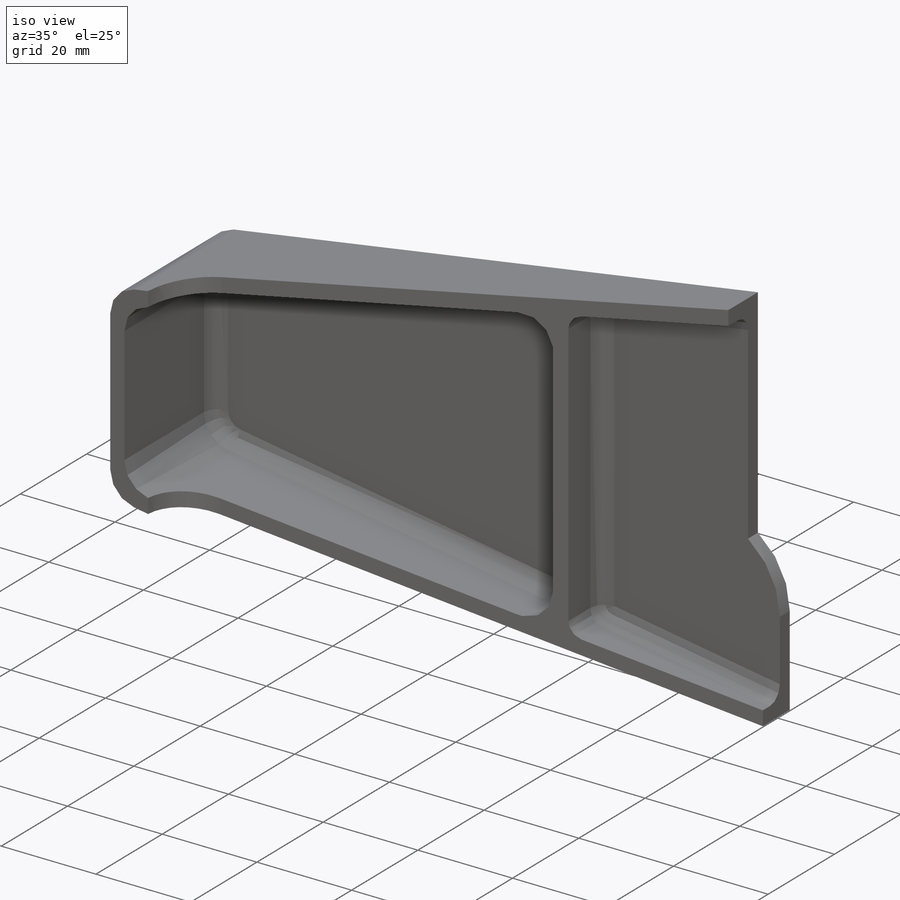
[diagram: iso view]
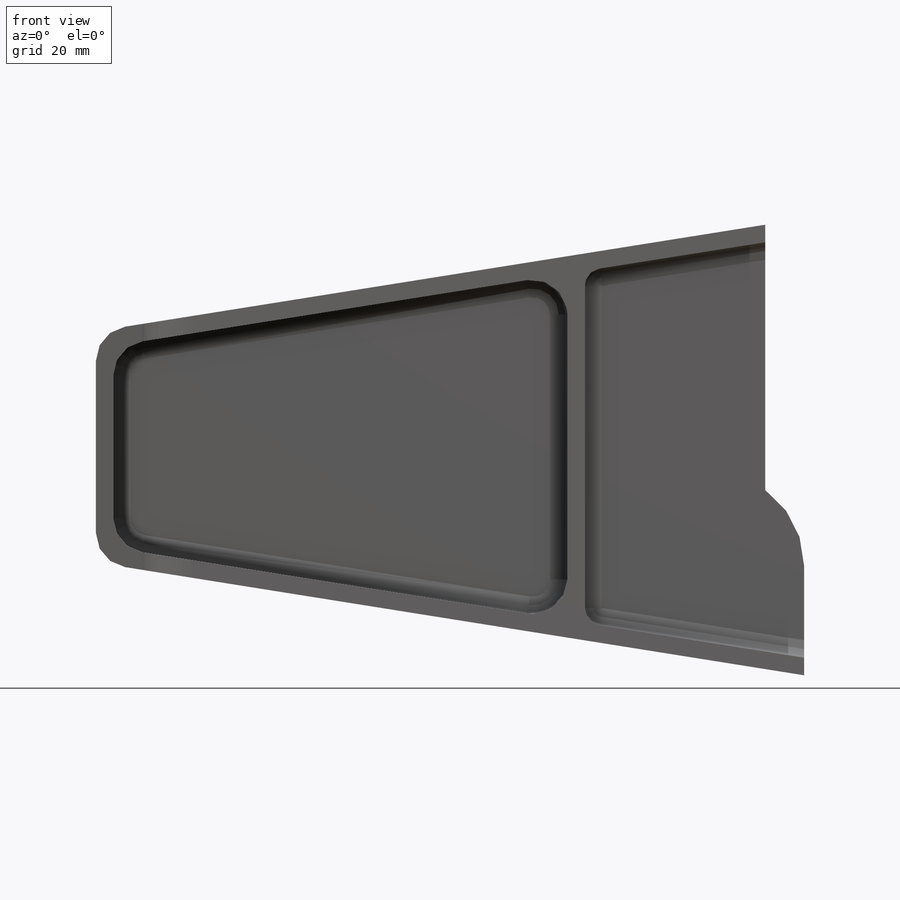
[diagram: front view]
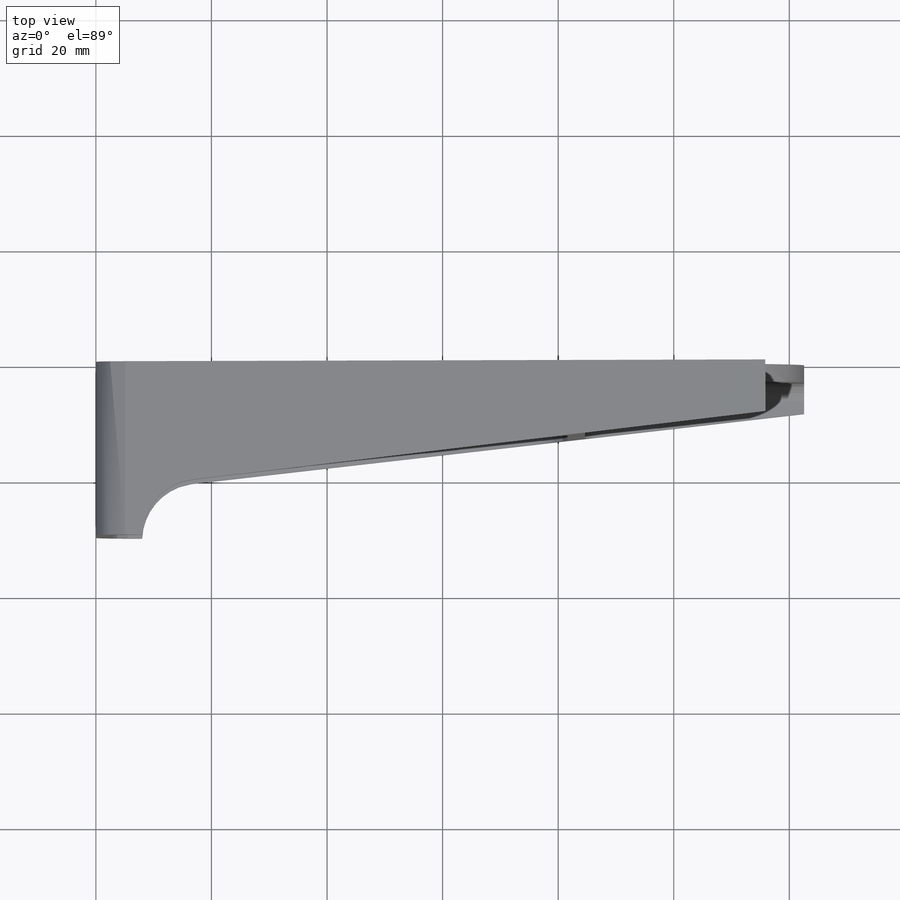
[diagram: top view]
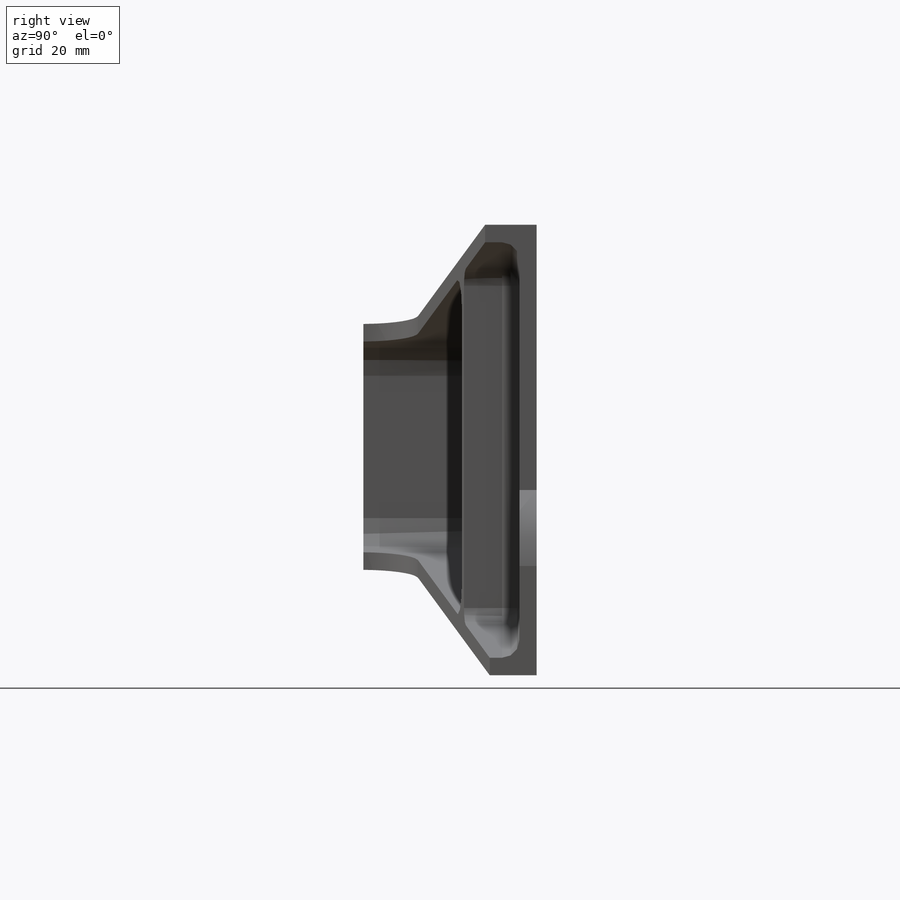
[diagram: right view]
SOLIDWORKS PART (.sldprt)
format: sldprt  version: not decoded by parser v0  size: 230,400 bytes
history: native  units: mm
features: fillet x5, sketch x4, plane x3, extrude x2, cut_extrude x2, material x1, shell x1 (+13 scaffold rows collapsed)
feature tree (31):
  scaffold x13  (default folders/planes/origin — collapsed)
  material  "Material <não especificado>"
  plane  "Plano frontal"
  plane  "Plano superior"
  plane  "Plano direito"
  sketch  "Esboço1"  dims[D1=80.0mm D2=40.0mm D3=20.0mm D4=20.0mm]
  extrude  "Extrusão1"  Depth=30mm
  shell  "Casca1"  Thickness=3mm
  sketch  "Esboço2"  dims[D1=3.0mm]
  extrude  "Extrusão2"  [1 undecoded]
  sketch  "Esboço4"
  cut_extrude  "Extrusão4"  Depth=45mm
  sketch  "Esboço5"  dims[D1=0.0mm]
  cut_extrude  "Extrusão6"  Depth=45mm
  fillet  "Filete1"  Radius=6mm
  fillet  "Filete7"  Radius=3mm
  fillet  "Filete8"  Radius=3mm
  fillet  "Filete10"  Radius=3mm
  fillet  "Filete11"  Radius=3mm
decode coverage: 12 of 14 modeling features carry decoded parameters
note: 1 parameter value undecoded
note: suppression state not decoded; provenance and decode notes live in map.json
